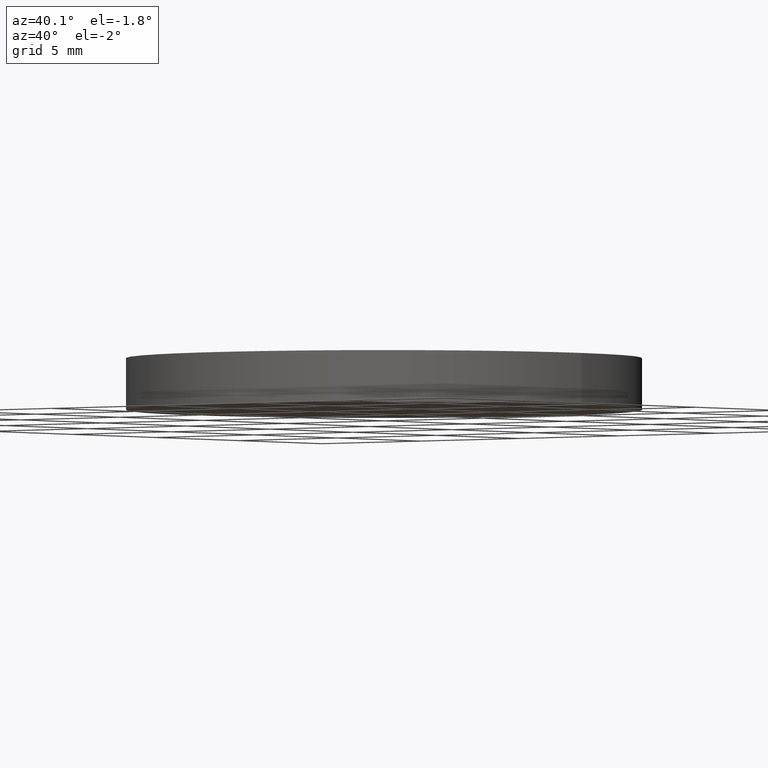
[diagram: clean part render]
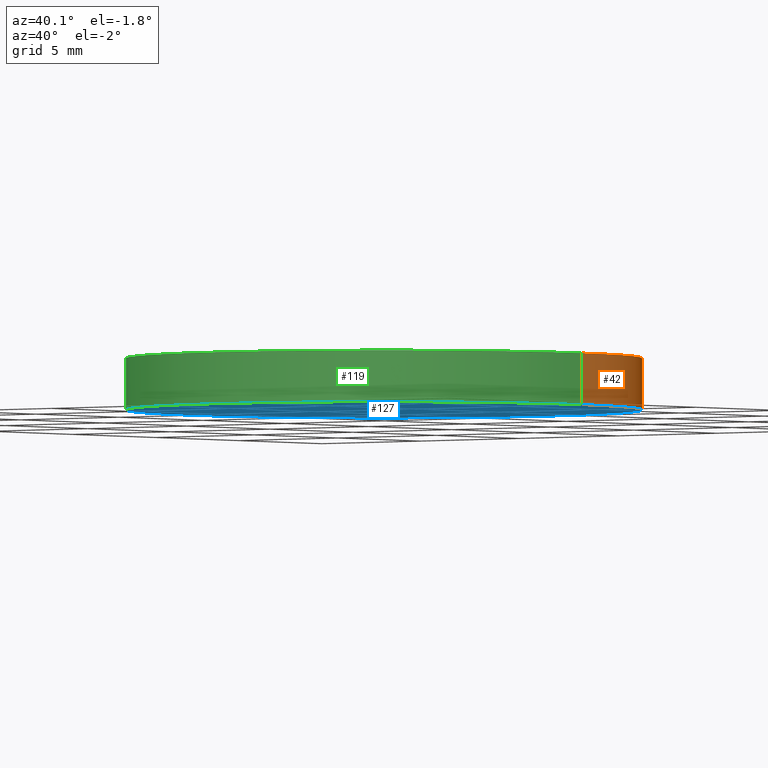
[diagram: same view with three faces highlighted in distinct colors, each labeled with its STEP entity id]
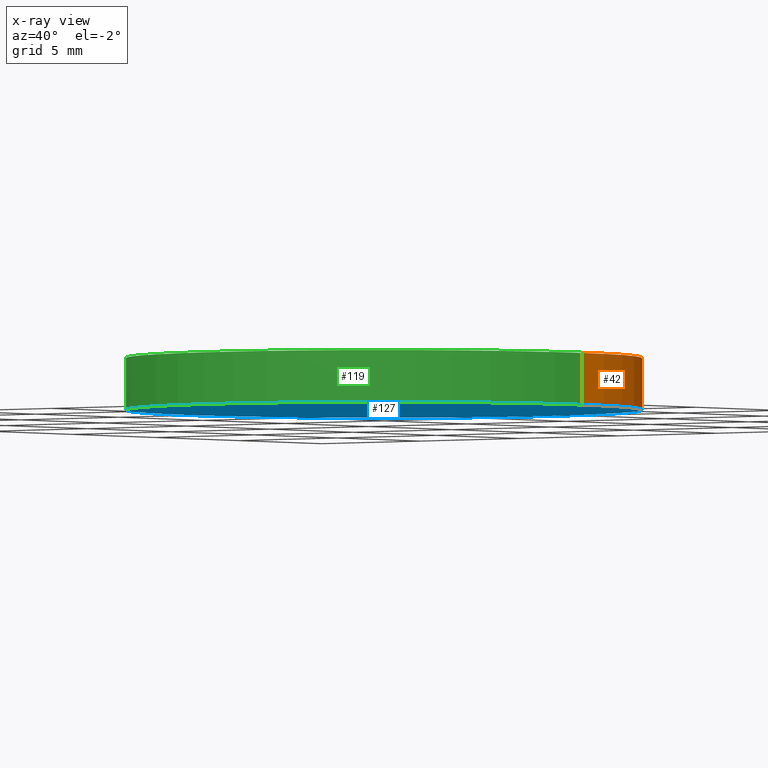
[diagram: x-ray of the same camera — body ghosted, the three highlighted faces saturated]
A machine part, auxiliary view with three faces highlighted in distinct colors.
The next image is the same camera in x-ray (body ghosted, the three faces saturated) — at least one of them is partly hidden behind the body in this view.
Their STEP definitions:

[orange] entity #42 — the highlighted cylindrical surface (partial cylindrical patch) has radius 10 mm, axis along (-0, -0, -1).
#2 = CARTESIAN_POINT ( 'NONE',  ( -10.00000000000000000, 0.0000000000000000000, 2.000000000000000000 ) ) ;
#10 = ORIENTED_EDGE ( 'NONE', *, *, #110, .T. ) ;
#18 = VERTEX_POINT ( 'NONE', #50 ) ;
#21 = EDGE_LOOP ( 'NONE', ( #87, #10, #23, #140 ) ) ;
#23 = ORIENTED_EDGE ( 'NONE', *, *, #34, .T. ) ;
#25 = DIRECTION ( 'NONE',  ( 0.0000000000000000000, 0.0000000000000000000, 1.000000000000000000 ) ) ;
#32 = VERTEX_POINT ( 'NONE', #38 ) ;
#33 = VECTOR ( 'NONE', #121, 1000.000000000000000 ) ;
#34 = EDGE_CURVE ( 'NONE', #43, #91, #54, .T. ) ;
#37 = EDGE_CURVE ( 'NONE', #18, #91, #39, .T. ) ;
#38 = CARTESIAN_POINT ( 'NONE',  ( 10.00000000000000000, 1.224646799147353300E-015, 2.000000000000000000 ) ) ;
#39 = LINE ( 'NONE', #2, #114 ) ;
#42 = ADVANCED_FACE ( 'NONE', ( #61 ), #137, .T. ) ;
#43 = VERTEX_POINT ( 'NONE', #111 ) ;
#50 = CARTESIAN_POINT ( 'NONE',  ( -10.00000000000000000, 0.0000000000000000000, 2.000000000000000000 ) ) ;
#54 = CIRCLE ( 'NONE', #128, 10.00000000000000000 ) ;
#58 = AXIS2_PLACEMENT_3D ( 'NONE', #81, #62, #72 ) ;
#61 = FACE_OUTER_BOUND ( 'NONE', #21, .T. ) ;
#62 = DIRECTION ( 'NONE',  ( 0.0000000000000000000, 0.0000000000000000000, 1.000000000000000000 ) ) ;
#67 = DIRECTION ( 'NONE',  ( -0.0000000000000000000, -0.0000000000000000000, -1.000000000000000000 ) ) ;
#69 = DIRECTION ( 'NONE',  ( -0.0000000000000000000, -0.0000000000000000000, -1.000000000000000000 ) ) ;
#71 = EDGE_CURVE ( 'NONE', #32, #18, #122, .T. ) ;
#72 = DIRECTION ( 'NONE',  ( 1.000000000000000000, 0.0000000000000000000, 0.0000000000000000000 ) ) ;
#81 = CARTESIAN_POINT ( 'NONE',  ( 0.0000000000000000000, 0.0000000000000000000, 2.000000000000000000 ) ) ;
#83 = DIRECTION ( 'NONE',  ( 1.000000000000000000, 0.0000000000000000000, 0.0000000000000000000 ) ) ;
#84 = CARTESIAN_POINT ( 'NONE',  ( 10.00000000000000000, 1.224646799147353300E-015, 2.000000000000000000 ) ) ;
#87 = ORIENTED_EDGE ( 'NONE', *, *, #71, .F. ) ;
#91 = VERTEX_POINT ( 'NONE', #103 ) ;
#103 = CARTESIAN_POINT ( 'NONE',  ( -10.00000000000000000, 0.0000000000000000000, 0.0000000000000000000 ) ) ;
#104 = CARTESIAN_POINT ( 'NONE',  ( 0.0000000000000000000, 0.0000000000000000000, 0.0000000000000000000 ) ) ;
#106 = CARTESIAN_POINT ( 'NONE',  ( 0.0000000000000000000, 0.0000000000000000000, 2.000000000000000000 ) ) ;
#110 = EDGE_CURVE ( 'NONE', #32, #43, #139, .T. ) ;
#111 = CARTESIAN_POINT ( 'NONE',  ( 10.00000000000000000, 1.224646799147353300E-015, 0.0000000000000000000 ) ) ;
#114 = VECTOR ( 'NONE', #67, 1000.000000000000000 ) ;
#121 = DIRECTION ( 'NONE',  ( -0.0000000000000000000, -0.0000000000000000000, -1.000000000000000000 ) ) ;
#122 = CIRCLE ( 'NONE', #58, 10.00000000000000000 ) ;
#126 = AXIS2_PLACEMENT_3D ( 'NONE', #106, #69, #133 ) ;
#128 = AXIS2_PLACEMENT_3D ( 'NONE', #104, #25, #83 ) ;
#133 = DIRECTION ( 'NONE',  ( -1.000000000000000000, 0.0000000000000000000, 0.0000000000000000000 ) ) ;
#137 = CYLINDRICAL_SURFACE ( 'NONE', #126, 10.00000000000000000 ) ;
#139 = LINE ( 'NONE', #84, #33 ) ;
#140 = ORIENTED_EDGE ( 'NONE', *, *, #37, .F. ) ;

[blue] entity #127 — the highlighted planar face has unit normal (0, 0, 1).
#5 = DIRECTION ( 'NONE',  ( 1.000000000000000000, 0.0000000000000000000, -0.0000000000000000000 ) ) ;
#13 = EDGE_LOOP ( 'NONE', ( #31, #99 ) ) ;
#15 = FACE_OUTER_BOUND ( 'NONE', #13, .T. ) ;
#24 = DIRECTION ( 'NONE',  ( 1.000000000000000000, 0.0000000000000000000, 0.0000000000000000000 ) ) ;
#25 = DIRECTION ( 'NONE',  ( 0.0000000000000000000, 0.0000000000000000000, 1.000000000000000000 ) ) ;
#31 = ORIENTED_EDGE ( 'NONE', *, *, #100, .F. ) ;
#34 = EDGE_CURVE ( 'NONE', #43, #91, #54, .T. ) ;
#43 = VERTEX_POINT ( 'NONE', #111 ) ;
#46 = DIRECTION ( 'NONE',  ( 0.0000000000000000000, 0.0000000000000000000, 1.000000000000000000 ) ) ;
#54 = CIRCLE ( 'NONE', #128, 10.00000000000000000 ) ;
#70 = AXIS2_PLACEMENT_3D ( 'NONE', #86, #98, #5 ) ;
#76 = PLANE ( 'NONE',  #70 ) ;
#83 = DIRECTION ( 'NONE',  ( 1.000000000000000000, 0.0000000000000000000, 0.0000000000000000000 ) ) ;
#86 = CARTESIAN_POINT ( 'NONE',  ( 0.0000000000000000000, 0.0000000000000000000, 0.0000000000000000000 ) ) ;
#91 = VERTEX_POINT ( 'NONE', #103 ) ;
#98 = DIRECTION ( 'NONE',  ( 0.0000000000000000000, 0.0000000000000000000, 1.000000000000000000 ) ) ;
#99 = ORIENTED_EDGE ( 'NONE', *, *, #34, .F. ) ;
#100 = EDGE_CURVE ( 'NONE', #91, #43, #102, .T. ) ;
#102 = CIRCLE ( 'NONE', #109, 10.00000000000000000 ) ;
#103 = CARTESIAN_POINT ( 'NONE',  ( -10.00000000000000000, 0.0000000000000000000, 0.0000000000000000000 ) ) ;
#104 = CARTESIAN_POINT ( 'NONE',  ( 0.0000000000000000000, 0.0000000000000000000, 0.0000000000000000000 ) ) ;
#109 = AXIS2_PLACEMENT_3D ( 'NONE', #120, #46, #24 ) ;
#111 = CARTESIAN_POINT ( 'NONE',  ( 10.00000000000000000, 1.224646799147353300E-015, 0.0000000000000000000 ) ) ;
#120 = CARTESIAN_POINT ( 'NONE',  ( 0.0000000000000000000, 0.0000000000000000000, 0.0000000000000000000 ) ) ;
#127 = ADVANCED_FACE ( 'NONE', ( #15 ), #76, .F. ) ;
#128 = AXIS2_PLACEMENT_3D ( 'NONE', #104, #25, #83 ) ;

[green] entity #119 — the highlighted cylindrical surface (partial cylindrical patch) has radius 10 mm, axis along (-0, -0, -1).
#2 = CARTESIAN_POINT ( 'NONE',  ( -10.00000000000000000, 0.0000000000000000000, 2.000000000000000000 ) ) ;
#3 = ORIENTED_EDGE ( 'NONE', *, *, #37, .T. ) ;
#11 = DIRECTION ( 'NONE',  ( -0.0000000000000000000, -0.0000000000000000000, -1.000000000000000000 ) ) ;
#12 = DIRECTION ( 'NONE',  ( -1.000000000000000000, 0.0000000000000000000, 0.0000000000000000000 ) ) ;
#16 = ORIENTED_EDGE ( 'NONE', *, *, #110, .F. ) ;
#17 = AXIS2_PLACEMENT_3D ( 'NONE', #113, #26, #77 ) ;
#18 = VERTEX_POINT ( 'NONE', #50 ) ;
#24 = DIRECTION ( 'NONE',  ( 1.000000000000000000, 0.0000000000000000000, 0.0000000000000000000 ) ) ;
#26 = DIRECTION ( 'NONE',  ( 0.0000000000000000000, 0.0000000000000000000, 1.000000000000000000 ) ) ;
#27 = FACE_OUTER_BOUND ( 'NONE', #79, .T. ) ;
#32 = VERTEX_POINT ( 'NONE', #38 ) ;
#33 = VECTOR ( 'NONE', #121, 1000.000000000000000 ) ;
#37 = EDGE_CURVE ( 'NONE', #18, #91, #39, .T. ) ;
#38 = CARTESIAN_POINT ( 'NONE',  ( 10.00000000000000000, 1.224646799147353300E-015, 2.000000000000000000 ) ) ;
#39 = LINE ( 'NONE', #2, #114 ) ;
#43 = VERTEX_POINT ( 'NONE', #111 ) ;
#46 = DIRECTION ( 'NONE',  ( 0.0000000000000000000, 0.0000000000000000000, 1.000000000000000000 ) ) ;
#49 = ORIENTED_EDGE ( 'NONE', *, *, #56, .F. ) ;
#50 = CARTESIAN_POINT ( 'NONE',  ( -10.00000000000000000, 0.0000000000000000000, 2.000000000000000000 ) ) ;
#55 = AXIS2_PLACEMENT_3D ( 'NONE', #135, #11, #12 ) ;
#56 = EDGE_CURVE ( 'NONE', #18, #32, #64, .T. ) ;
#64 = CIRCLE ( 'NONE', #17, 10.00000000000000000 ) ;
#65 = ORIENTED_EDGE ( 'NONE', *, *, #100, .T. ) ;
#67 = DIRECTION ( 'NONE',  ( -0.0000000000000000000, -0.0000000000000000000, -1.000000000000000000 ) ) ;
#77 = DIRECTION ( 'NONE',  ( 1.000000000000000000, 0.0000000000000000000, 0.0000000000000000000 ) ) ;
#78 = CYLINDRICAL_SURFACE ( 'NONE', #55, 10.00000000000000000 ) ;
#79 = EDGE_LOOP ( 'NONE', ( #16, #49, #3, #65 ) ) ;
#84 = CARTESIAN_POINT ( 'NONE',  ( 10.00000000000000000, 1.224646799147353300E-015, 2.000000000000000000 ) ) ;
#91 = VERTEX_POINT ( 'NONE', #103 ) ;
#100 = EDGE_CURVE ( 'NONE', #91, #43, #102, .T. ) ;
#102 = CIRCLE ( 'NONE', #109, 10.00000000000000000 ) ;
#103 = CARTESIAN_POINT ( 'NONE',  ( -10.00000000000000000, 0.0000000000000000000, 0.0000000000000000000 ) ) ;
#109 = AXIS2_PLACEMENT_3D ( 'NONE', #120, #46, #24 ) ;
#110 = EDGE_CURVE ( 'NONE', #32, #43, #139, .T. ) ;
#111 = CARTESIAN_POINT ( 'NONE',  ( 10.00000000000000000, 1.224646799147353300E-015, 0.0000000000000000000 ) ) ;
#113 = CARTESIAN_POINT ( 'NONE',  ( 0.0000000000000000000, 0.0000000000000000000, 2.000000000000000000 ) ) ;
#114 = VECTOR ( 'NONE', #67, 1000.000000000000000 ) ;
#119 = ADVANCED_FACE ( 'NONE', ( #27 ), #78, .T. ) ;
#120 = CARTESIAN_POINT ( 'NONE',  ( 0.0000000000000000000, 0.0000000000000000000, 0.0000000000000000000 ) ) ;
#121 = DIRECTION ( 'NONE',  ( -0.0000000000000000000, -0.0000000000000000000, -1.000000000000000000 ) ) ;
#135 = CARTESIAN_POINT ( 'NONE',  ( 0.0000000000000000000, 0.0000000000000000000, 2.000000000000000000 ) ) ;
#139 = LINE ( 'NONE', #84, #33 ) ;